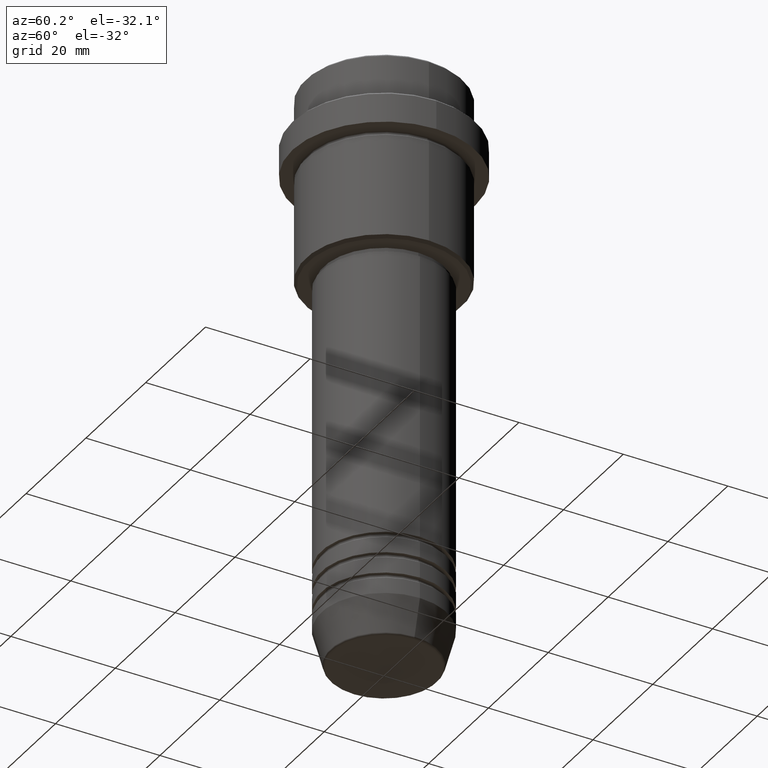
[diagram: clean part render]
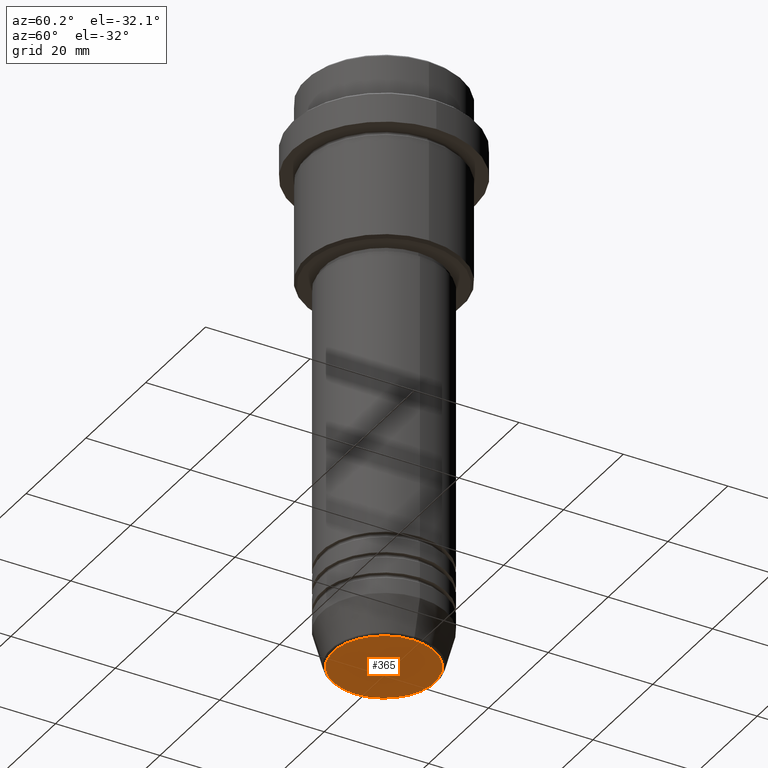
[diagram: same view with one face highlighted and labeled with its STEP entity id]
A machine part, auxiliary view. The second image highlights one B-rep face of the part: STEP entity #365.
In plain terms, the highlighted planar face has unit normal (0, -0, 1).
Its self-contained STEP definition (entity closure, byte-faithful):
#56 = CARTESIAN_POINT ( 'NONE',  ( 0.000000000000000000, 0.000000000000000000, -110.9999999999999858 ) ) ;
#163 = CARTESIAN_POINT ( 'NONE',  ( 0.000000000000000000, 0.000000000000000000, -110.9999999999999858 ) ) ;
#271 = DIRECTION ( 'NONE',  ( 1.000000000000000000, 0.000000000000000000, 0.000000000000000000 ) ) ;
#365 = ADVANCED_FACE ( 'NONE', ( #605 ), #595, .F. ) ;
#456 = AXIS2_PLACEMENT_3D ( 'NONE', #56, #499, #271 ) ;
#459 = AXIS2_PLACEMENT_3D ( 'NONE', #673, #996, #927 ) ;
#499 = DIRECTION ( 'NONE',  ( 0.000000000000000000, -0.000000000000000000, 1.000000000000000000 ) ) ;
#595 = PLANE ( 'NONE',  #456 ) ;
#604 = EDGE_LOOP ( 'NONE', ( #1242, #804 ) ) ;
#605 = FACE_OUTER_BOUND ( 'NONE', #604, .T. ) ;
#640 = DIRECTION ( 'NONE',  ( 1.000000000000000000, 0.000000000000000000, 0.000000000000000000 ) ) ;
#673 = CARTESIAN_POINT ( 'NONE',  ( 0.000000000000000000, 0.000000000000000000, -110.9999999999999858 ) ) ;
#804 = ORIENTED_EDGE ( 'NONE', *, *, #1055, .T. ) ;
#927 = DIRECTION ( 'NONE',  ( 1.000000000000000000, 0.000000000000000000, 0.000000000000000000 ) ) ;
#930 = VERTEX_POINT ( 'NONE', #1382 ) ;
#970 = DIRECTION ( 'NONE',  ( 0.000000000000000000, 0.000000000000000000, -1.000000000000000000 ) ) ;
#996 = DIRECTION ( 'NONE',  ( 0.000000000000000000, 0.000000000000000000, -1.000000000000000000 ) ) ;
#1055 = EDGE_CURVE ( 'NONE', #930, #1220, #1309, .T. ) ;
#1173 = CIRCLE ( 'NONE', #1377, 9.740692158992654726 ) ;
#1220 = VERTEX_POINT ( 'NONE', #1251 ) ;
#1233 = EDGE_CURVE ( 'NONE', #1220, #930, #1173, .T. ) ;
#1242 = ORIENTED_EDGE ( 'NONE', *, *, #1233, .T. ) ;
#1251 = CARTESIAN_POINT ( 'NONE',  ( 9.740692158992654726, 0.000000000000000000, -110.9999999999999858 ) ) ;
#1309 = CIRCLE ( 'NONE', #459, 9.740692158992654726 ) ;
#1377 = AXIS2_PLACEMENT_3D ( 'NONE', #163, #970, #640 ) ;
#1382 = CARTESIAN_POINT ( 'NONE',  ( -9.740692158992654726, 1.222463696683474210E-15, -110.9999999999999858 ) ) ;